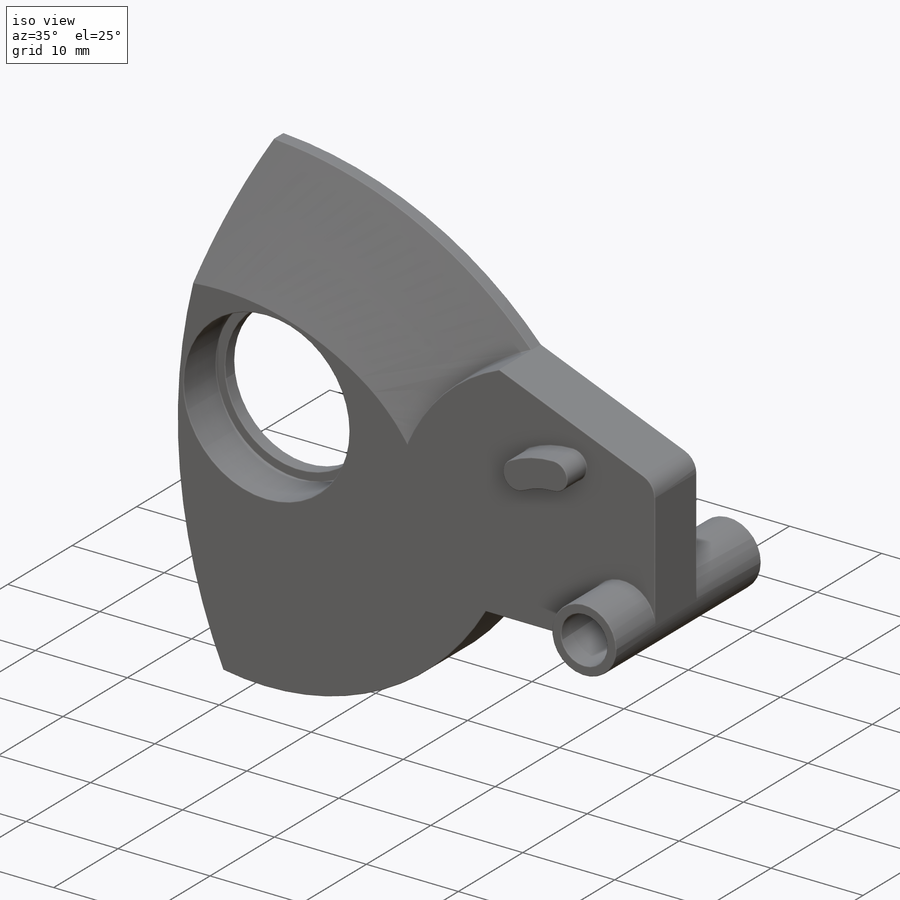
[diagram: iso view]
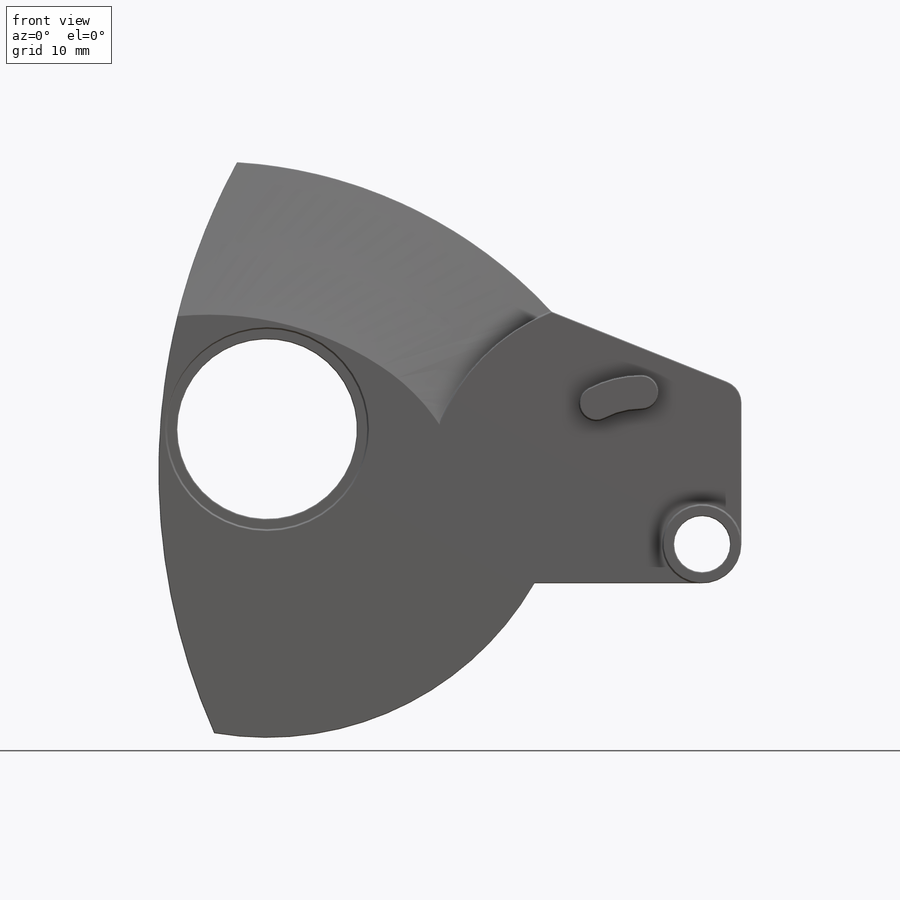
[diagram: front view]
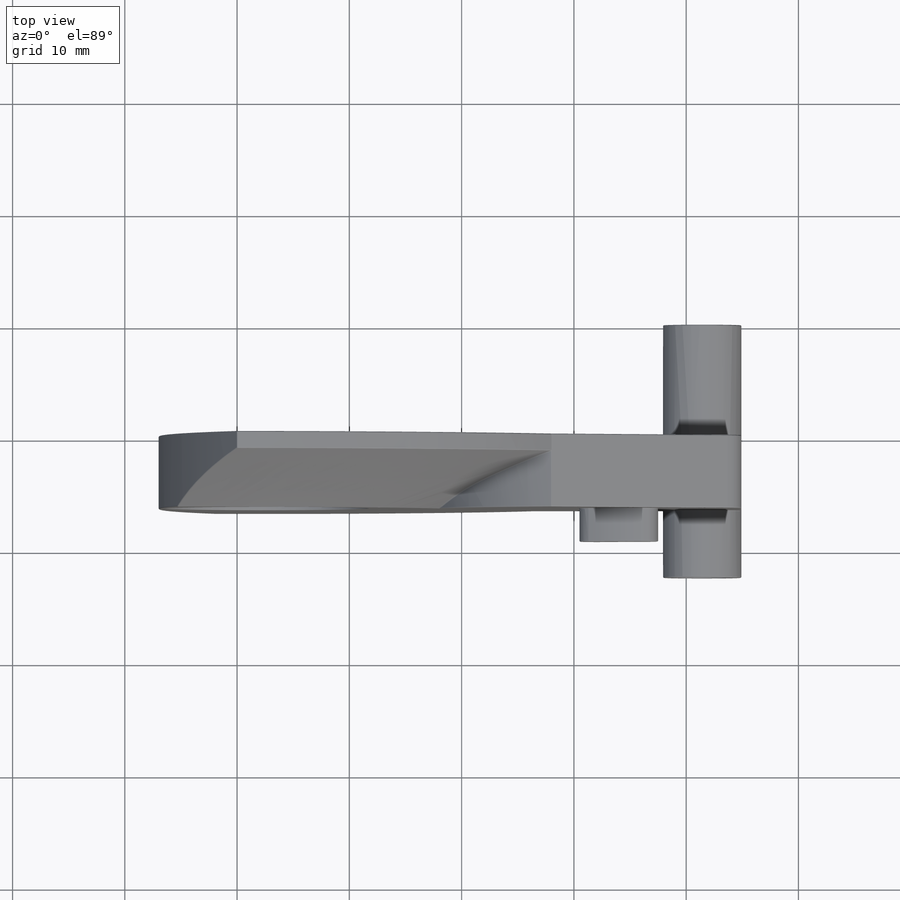
[diagram: top view]
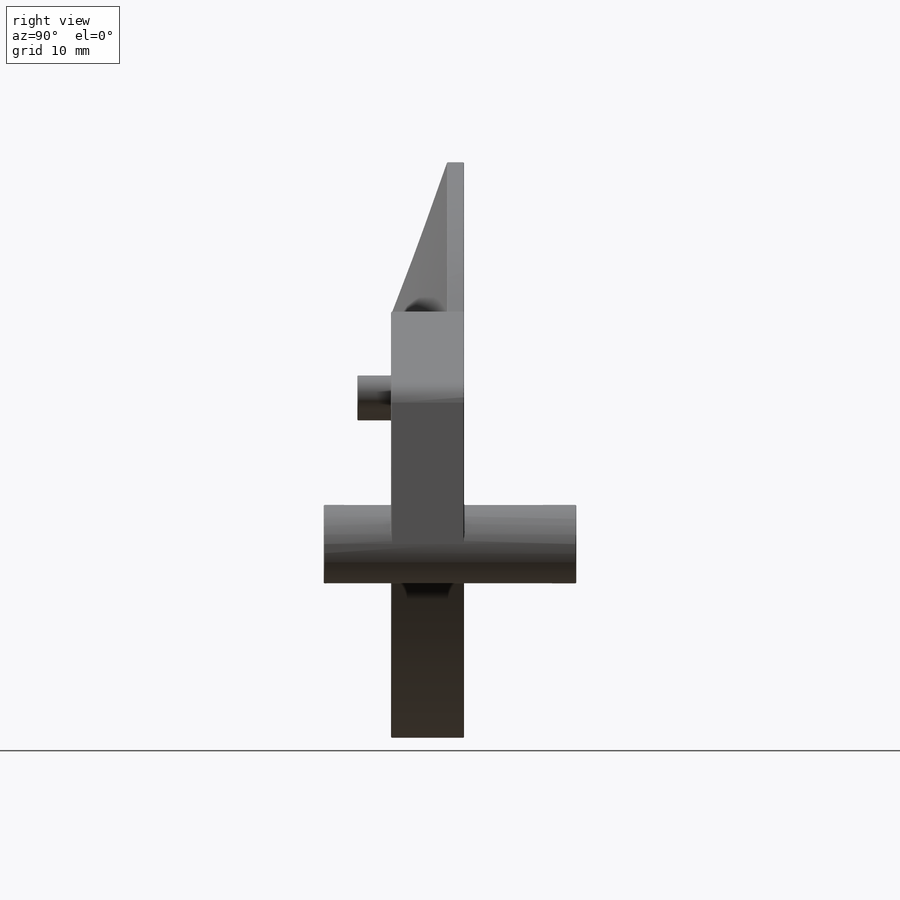
[diagram: right view]
SOLIDWORKS PART (.sldprt)
format: sldprt  version: not decoded by parser v0  size: 839,680 bytes
history: native  units: mm
features: sketch x19, fillet x9, extrude x8, cut_extrude x5, plane x2, sweep x2, material x1 (+11 scaffold rows collapsed)
feature tree (57):
  scaffold x11  (default folders/planes/origin — collapsed)
  material  "Material <not specified>"
  sketch  "Sketch1"  dims[c1.D1=~43.471266mm c1.D4=~26.317648mm c2.D1=55.0mm c2.D2=0.0mm c2.D3=7.0mm c2.D4=31.0mm c2.D5=31.0mm c3.D4=31.0mm c3.D5=19.0mm c3.D6=14.0mm c3.D7=8.0mm c3.D8=3.0mm c3.D9=28.0mm c3.D10=28.0mm c3.D11=3.0mm c3.D12=~3.991082mm]
  extrude  "Boss-Extrude1"  Depth=6.5mm
  fillet  "Fillet2"  Radius=3.5mm
  sketch  "Sketch4"  dims[D1=7.0mm D2=3.92mm D3=0.02mm]
  extrude  "Boss-Extrude2"  Depth=6mm
  sketch  "Sketch5"  dims[D1=4.0mm]
  cut_extrude  "Cut-Extrude1"  [1 undecoded]
  sketch  "Sketch7"  dims[D1=4.0mm]
  cut_extrude  "Cut-Extrude2"  [1 undecoded]
  sketch  "Sketch8"  dims[c1.D1=~8.23867mm c1.D4=10.0mm c1.D5=1.5mm c1.D6=~10.060862mm c2.D1=4.0mm c2.D2=5.0mm c2.D3=19.0mm c2.D6=20.0mm]
  extrude  "Boss-Extrude3"  Depth=3mm
  plane  "Plane2"
  sketch  "Sketch9"  dims[D1=1.5mm D2=16.0mm D3=5.0mm]
  sketch  "Sketch10"
  plane  "Plane3"  Offset=5mm
  sketch  "Sketch11"
  sweep  "Cut-Sweep2"
  sketch  "Sketch12"  dims[c1.D1=~15.940259mm c1.D3=18.0mm c1.D4=18.98mm c2.D1=10.0mm c2.D2=10.0mm c2.D4=0.01mm]
  sketch  "Sketch14"  dims[D1=0.0mm]
  sketch  "Sketch15"  dims[D1=18.0mm D2=10.0mm D3=10.0mm D4=~6.304831mm D5=~7.488425mm]
  sweep  "Cut-Sweep3"
  sketch  "Sketch17"  dims[D1=0.01mm]
  extrude  "Boss-Extrude5"  [1 undecoded]
  sketch  "Sketch18"  dims[c1.D1=18.0mm c1.D2=10.0mm c1.D3=8.0mm c2.D2=10.25mm c2.D3=38.75mm]
  cut_extrude  "Cut-Extrude3"  Depth=10mm
  sketch  "Sketch19"  dims[D1=16.0mm]
  extrude  "Boss-Extrude6"  Depth=1.5mm
  sketch  "Sketch20"  dims[D1=~9.948686mm]
  extrude  "Boss-Extrude9"  [1 undecoded]
  sketch  "Sketch21"  dims[D1=~1.189234mm]
  extrude  "Boss-Extrude10"  [1 undecoded]
  sketch  "Sketch22"  dims[D1=7.0mm]
  extrude  "Boss-Extrude11"  [1 undecoded]
  fillet  "Fillet3"  Radius=2mm
  sketch  "Sketch26"  dims[D1=55.0mm D2=~2.048804mm]
  cut_extrude  "Cut-Extrude4"  Depth=10mm
  fillet  "Fillet4"  Radius=0.1mm
  fillet  "Fillet5"  Radius=0.1mm
  sketch  "Sketch27"  dims[D1=5.0mm]
  cut_extrude  "Cut-Extrude5"  [1 undecoded]
  fillet  "Fillet6"  Radius=0.1mm
  fillet  "Fillet7"  Radius=0.1mm
  fillet  "Fillet8"  Radius=0.1mm
  fillet  "Fillet9"  Radius=0.1mm
  fillet  "Fillet10"  Radius=0.1mm
decode coverage: 32 of 43 modeling features carry decoded parameters
note: ~ marks probable driven/reference dimensions
note: 7 parameter values undecoded
summary: no parameter record found for 7 features
note: suppression state not decoded; provenance and decode notes live in map.json
